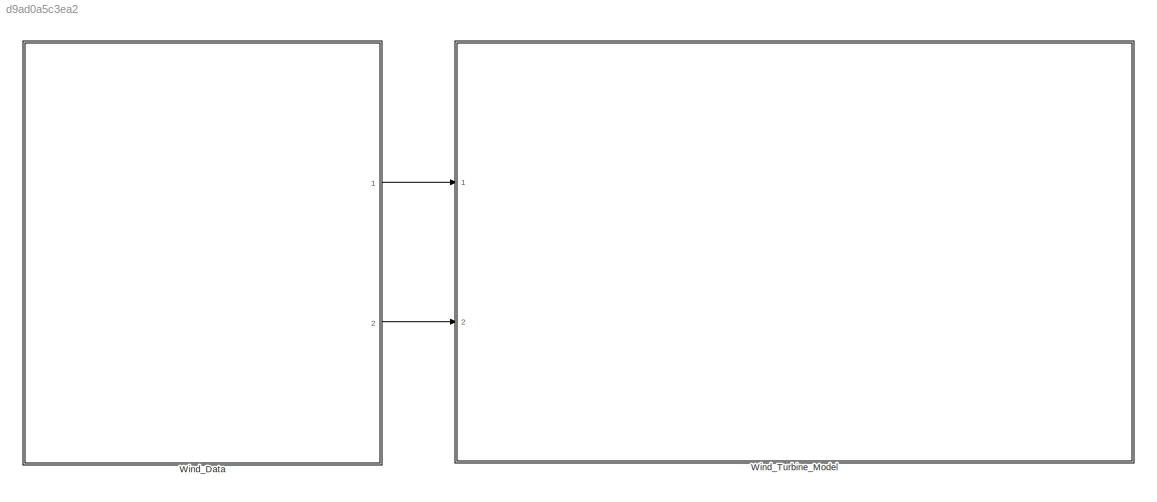
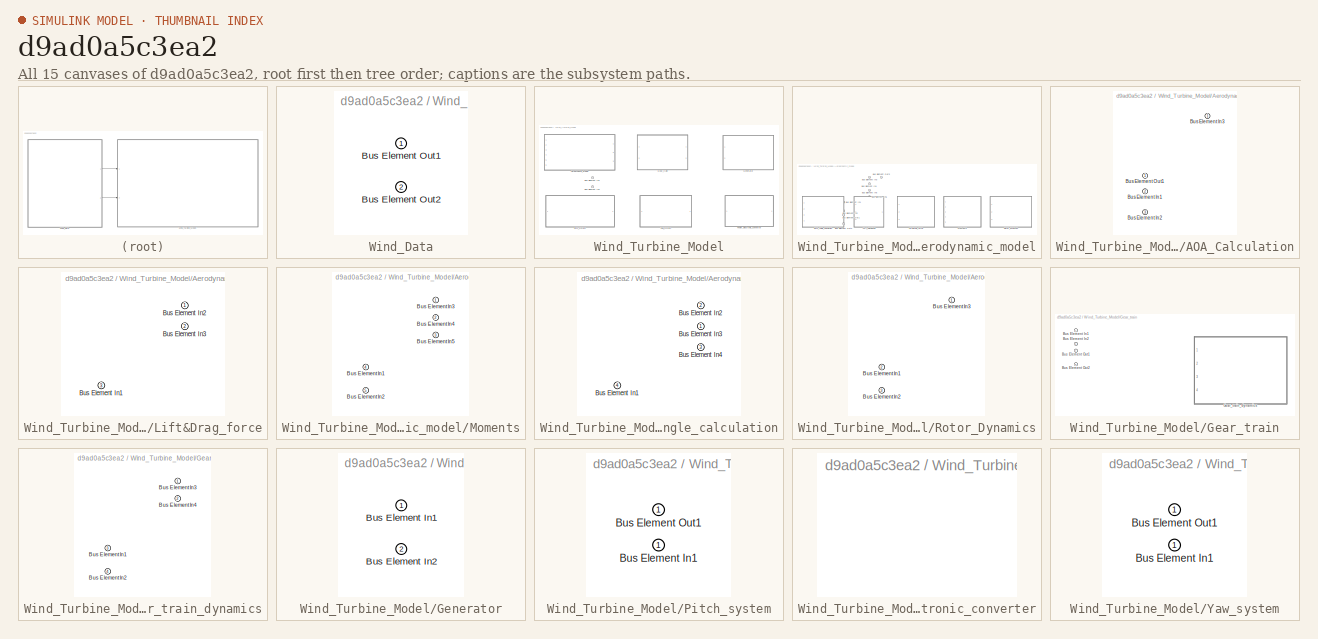
[diagram: thumbnail index - all 15 canvases of the model, root first then tree order]
MODEL slx_d9ad0a5c3ea2
KIND model
CONFIG AbsTol = auto
CONFIG EnableMultiTasking = off
CONFIG FixedStep = auto
CONFIG MaxStep = auto
CONFIG MinStep = auto
CONFIG RelTol = 1e-3
CONFIG SampleTimeConstraint = Unconstrained
CONFIG Solver = VariableStepAuto
CONFIG SolverName = VariableStepAuto
CONFIG StartTime = 0.0
CONFIG StopTime = 10.0
WORKSPACE source: mxarray member
WORKSPACE Aerodynamics_subsystem: Simulink.Bus (value not decoded)
WORKSPACE Gear_train: Simulink.Bus (value not decoded)
WORKSPACE Pitch_subsystem: Simulink.Bus (value not decoded)
WORKSPACE Yaw_subsystem: Simulink.Bus (value not decoded)
BLOCK [SubSystem] Wind_Data
  PortSchema = {"entries":[{"content":{"headerSize":26,"margin":15,"minimumSpacing":25,"sides":[{"content":{"connectorIds":[]},"type":"ConnectorPlacement.EquallySpacedRectSide","uuid":"0b654df8-291b-4ec3-b235-d9b2c2fe09d2"},{"content":{"connectorIds":["Out1","Out2"],"side":"RIGHT"},"type":"ConnectorPlacement.EquallySpacedRectSide","uuid":"a4fe281e-c492-45bd-b5d6-a645186b9bb6"},{"content":{"connectorIds":[],"side...<+292ch>
  Ports = [0, 2]
  RequestExecContextInheritance = off
BLOCK [Outport] Wind_Data/Bus Element Out1
BLOCK [Outport] Wind_Data/Bus Element Out2
  Port = 2
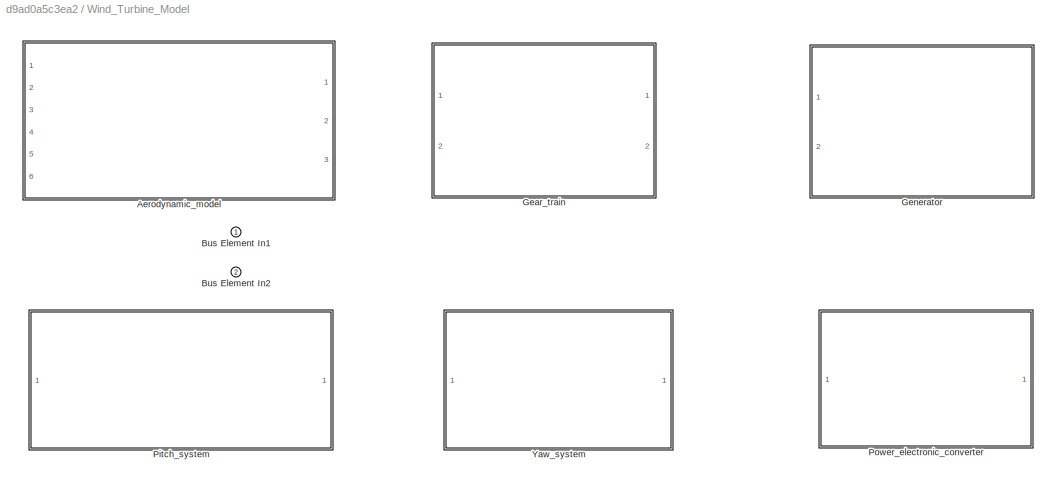
BLOCK [SubSystem] Wind_Turbine_Model
  PortSchema = {"entries":[{"content":{"headerSize":26,"margin":15,"minimumSpacing":25,"sides":[{"content":{"connectorIds":["In1","In2"]},"type":"ConnectorPlacement.EquallySpacedRectSide","uuid":"0b654df8-291b-4ec3-b235-d9b2c2fe09d2"},{"content":{"connectorIds":[],"side":"RIGHT"},"type":"ConnectorPlacement.EquallySpacedRectSide","uuid":"a4fe281e-c492-45bd-b5d6-a645186b9bb6"},{"content":{"connectorIds":[],"side":...<+290ch>
  Ports = [2]
  RequestExecContextInheritance = off
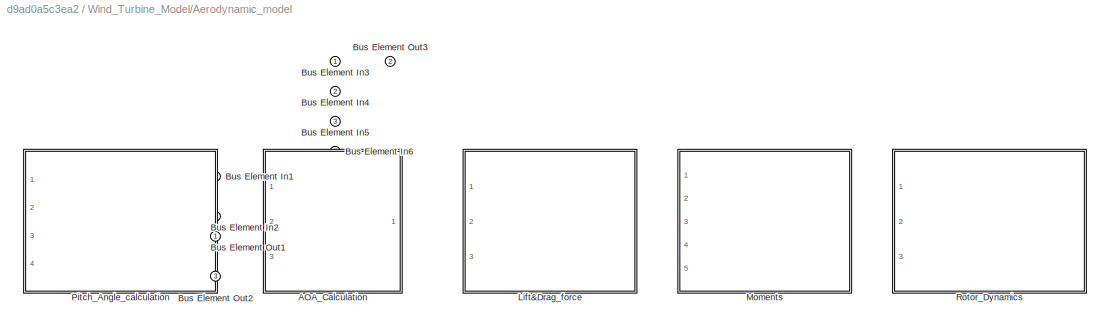
BLOCK [SubSystem] Wind_Turbine_Model/Aerodynamic_model
  PortSchema = {"entries":[{"content":{"headerSize":26,"margin":15,"minimumSpacing":25,"sides":[{"content":{"connectorIds":["In5","In6","In3","In4"]},"type":"ConnectorPlacement.EquallySpacedRectSide","uuid":"0b654df8-291b-4ec3-b235-d9b2c2fe09d2"},{"content":{"connectorIds":["Out1","Out2","Out3"],"side":"RIGHT"},"type":"ConnectorPlacement.EquallySpacedRectSide","uuid":"a4fe281e-c492-45bd-b5d6-a645186b9bb6"},{"con...<+477ch>
  Ports = [6, 3]
  RequestExecContextInheritance = off
BLOCK [SubSystem] Wind_Turbine_Model/Aerodynamic_model/AOA_Calculation
  PortSchema = {"entries":[{"content":{"headerSize":26,"margin":15,"minimumSpacing":25,"sides":[{"content":{"connectorIds":["In2","Out1","In3"]},"type":"ConnectorPlacement.EquallySpacedRectSide","uuid":"ecf00de0-4a48-4b42-860b-7442add18d3c"},{"content":{"connectorIds":["In1"],"side":"RIGHT"},"type":"ConnectorPlacement.EquallySpacedRectSide","uuid":"09469086-fd43-4e9a-86e9-3abd2ebc91c2"},{"content":{"connectorIds...<+302ch>
  Ports = [3, 1]
  RequestExecContextInheritance = off
BLOCK [Inport] Wind_Turbine_Model/Aerodynamic_model/AOA_Calculation/Bus Element In1
  Port = 2
BLOCK [Inport] Wind_Turbine_Model/Aerodynamic_model/AOA_Calculation/Bus Element In2
  Port = 3
BLOCK [Inport] Wind_Turbine_Model/Aerodynamic_model/AOA_Calculation/Bus Element In3
BLOCK [Outport] Wind_Turbine_Model/Aerodynamic_model/AOA_Calculation/Bus Element Out1
BLOCK [Inport] Wind_Turbine_Model/Aerodynamic_model/Bus Element In1
  Port = 5
BLOCK [Inport] Wind_Turbine_Model/Aerodynamic_model/Bus Element In2
  Port = 6
BLOCK [Inport] Wind_Turbine_Model/Aerodynamic_model/Bus Element In3
BLOCK [Inport] Wind_Turbine_Model/Aerodynamic_model/Bus Element In4
  Port = 2
BLOCK [Inport] Wind_Turbine_Model/Aerodynamic_model/Bus Element In5
  Port = 3
BLOCK [Inport] Wind_Turbine_Model/Aerodynamic_model/Bus Element In6
  Port = 4
BLOCK [Outport] Wind_Turbine_Model/Aerodynamic_model/Bus Element Out1
BLOCK [Outport] Wind_Turbine_Model/Aerodynamic_model/Bus Element Out2
  Port = 3
BLOCK [Outport] Wind_Turbine_Model/Aerodynamic_model/Bus Element Out3
  Port = 2
BLOCK [SubSystem] Wind_Turbine_Model/Aerodynamic_model/Lift&Drag_force
  PortSchema = {"entries":[{"content":{"headerSize":26,"margin":15,"minimumSpacing":25,"sides":[{"content":{"connectorIds":["In3"]},"type":"ConnectorPlacement.EquallySpacedRectSide","uuid":"ecf00de0-4a48-4b42-860b-7442add18d3c"},{"content":{"connectorIds":["In1","In2"],"side":"RIGHT"},"type":"ConnectorPlacement.EquallySpacedRectSide","uuid":"09469086-fd43-4e9a-86e9-3abd2ebc91c2"},{"content":{"connectorIds":[],"s...<+295ch>
  Ports = [3]
  RequestExecContextInheritance = off
BLOCK [Inport] Wind_Turbine_Model/Aerodynamic_model/Lift&Drag_force/Bus Element In1
  Port = 3
BLOCK [Inport] Wind_Turbine_Model/Aerodynamic_model/Lift&Drag_force/Bus Element In2
BLOCK [Inport] Wind_Turbine_Model/Aerodynamic_model/Lift&Drag_force/Bus Element In3
  Port = 2
BLOCK [SubSystem] Wind_Turbine_Model/Aerodynamic_model/Moments
  PortSchema = {"entries":[{"content":{"headerSize":26,"margin":15,"minimumSpacing":25,"sides":[{"content":{"connectorIds":["In4","In5","In3"]},"type":"ConnectorPlacement.EquallySpacedRectSide","uuid":"ecf00de0-4a48-4b42-860b-7442add18d3c"},{"content":{"connectorIds":["In1","In2"],"side":"RIGHT"},"type":"ConnectorPlacement.EquallySpacedRectSide","uuid":"09469086-fd43-4e9a-86e9-3abd2ebc91c2"},{"content":{"connect...<+307ch>
  Ports = [5]
  RequestExecContextInheritance = off
BLOCK [Inport] Wind_Turbine_Model/Aerodynamic_model/Moments/Bus Element In1
  Port = 4
BLOCK [Inport] Wind_Turbine_Model/Aerodynamic_model/Moments/Bus Element In2
  Port = 5
BLOCK [Inport] Wind_Turbine_Model/Aerodynamic_model/Moments/Bus Element In3
BLOCK [Inport] Wind_Turbine_Model/Aerodynamic_model/Moments/Bus Element In4
  Port = 2
BLOCK [Inport] Wind_Turbine_Model/Aerodynamic_model/Moments/Bus Element In5
  Port = 3
BLOCK [SubSystem] Wind_Turbine_Model/Aerodynamic_model/Pitch_Angle_calculation
  PortSchema = {"entries":[{"content":{"headerSize":26,"margin":15,"minimumSpacing":25,"sides":[{"content":{"connectorIds":["In2","In4","In3"]},"type":"ConnectorPlacement.EquallySpacedRectSide","uuid":"ecf00de0-4a48-4b42-860b-7442add18d3c"},{"content":{"connectorIds":["In1"],"side":"RIGHT"},"type":"ConnectorPlacement.EquallySpacedRectSide","uuid":"09469086-fd43-4e9a-86e9-3abd2ebc91c2"},{"content":{"connectorIds"...<+301ch>
  Ports = [4]
  RequestExecContextInheritance = off
BLOCK [Inport] Wind_Turbine_Model/Aerodynamic_model/Pitch_Angle_calculation/Bus Element In1
  Port = 4
BLOCK [Inport] Wind_Turbine_Model/Aerodynamic_model/Pitch_Angle_calculation/Bus Element In2
  Port = 2
BLOCK [Inport] Wind_Turbine_Model/Aerodynamic_model/Pitch_Angle_calculation/Bus Element In3
BLOCK [Inport] Wind_Turbine_Model/Aerodynamic_model/Pitch_Angle_calculation/Bus Element In4
  Port = 3
BLOCK [SubSystem] Wind_Turbine_Model/Aerodynamic_model/Rotor_Dynamics
  PortSchema = {"entries":[{"content":{"headerSize":26,"margin":15,"minimumSpacing":25,"sides":[{"content":{"connectorIds":["In2","In3"]},"type":"ConnectorPlacement.EquallySpacedRectSide","uuid":"ecf00de0-4a48-4b42-860b-7442add18d3c"},{"content":{"connectorIds":["In1"],"side":"RIGHT"},"type":"ConnectorPlacement.EquallySpacedRectSide","uuid":"09469086-fd43-4e9a-86e9-3abd2ebc91c2"},{"content":{"connectorIds":[],"s...<+295ch>
  Ports = [3]
  RequestExecContextInheritance = off
BLOCK [Inport] Wind_Turbine_Model/Aerodynamic_model/Rotor_Dynamics/Bus Element In1
  Port = 2
BLOCK [Inport] Wind_Turbine_Model/Aerodynamic_model/Rotor_Dynamics/Bus Element In2
  Port = 3
BLOCK [Inport] Wind_Turbine_Model/Aerodynamic_model/Rotor_Dynamics/Bus Element In3
BLOCK [Inport] Wind_Turbine_Model/Bus Element In1
BLOCK [Inport] Wind_Turbine_Model/Bus Element In2
  Port = 2
BLOCK [SubSystem] Wind_Turbine_Model/Gear_train
  PortSchema = {"entries":[{"content":{"headerSize":26,"margin":15,"minimumSpacing":25,"sides":[{"content":{"connectorIds":["In1","In2"]},"type":"ConnectorPlacement.EquallySpacedRectSide","uuid":"0b654df8-291b-4ec3-b235-d9b2c2fe09d2"},{"content":{"connectorIds":["Out1","Out2"],"side":"RIGHT"},"type":"ConnectorPlacement.EquallySpacedRectSide","uuid":"a4fe281e-c492-45bd-b5d6-a645186b9bb6"},{"content":{"connectorId...<+303ch>
  Ports = [2, 2]
  RequestExecContextInheritance = off
BLOCK [Inport] Wind_Turbine_Model/Gear_train/Bus Element In1
BLOCK [Inport] Wind_Turbine_Model/Gear_train/Bus Element In2
  Port = 2
BLOCK [Outport] Wind_Turbine_Model/Gear_train/Bus Element Out1
BLOCK [Outport] Wind_Turbine_Model/Gear_train/Bus Element Out2
  Port = 2
BLOCK [SubSystem] Wind_Turbine_Model/Gear_train/Gear_train_dynamics
  PortSchema = {"entries":[{"content":{"headerSize":26,"margin":15,"minimumSpacing":25,"sides":[{"content":{"connectorIds":["In3","In4"]},"type":"ConnectorPlacement.EquallySpacedRectSide","uuid":"ecf00de0-4a48-4b42-860b-7442add18d3c"},{"content":{"connectorIds":["In1","In2"],"side":"RIGHT"},"type":"ConnectorPlacement.EquallySpacedRectSide","uuid":"09469086-fd43-4e9a-86e9-3abd2ebc91c2"},{"content":{"connectorIds"...<+301ch>
  Ports = [4]
  RequestExecContextInheritance = off
BLOCK [Inport] Wind_Turbine_Model/Gear_train/Gear_train_dynamics/Bus Element In1
  Port = 3
BLOCK [Inport] Wind_Turbine_Model/Gear_train/Gear_train_dynamics/Bus Element In2
  Port = 4
BLOCK [Inport] Wind_Turbine_Model/Gear_train/Gear_train_dynamics/Bus Element In3
BLOCK [Inport] Wind_Turbine_Model/Gear_train/Gear_train_dynamics/Bus Element In4
  Port = 2
BLOCK [SubSystem] Wind_Turbine_Model/Generator
  PortSchema = {"entries":[{"content":{"headerSize":26,"margin":15,"minimumSpacing":25,"sides":[{"content":{"connectorIds":["In1","In2"]},"type":"ConnectorPlacement.EquallySpacedRectSide","uuid":"0b654df8-291b-4ec3-b235-d9b2c2fe09d2"},{"content":{"connectorIds":[],"side":"RIGHT"},"type":"ConnectorPlacement.EquallySpacedRectSide","uuid":"a4fe281e-c492-45bd-b5d6-a645186b9bb6"},{"content":{"connectorIds":[],"side":...<+290ch>
  Ports = [2]
  RequestExecContextInheritance = off
BLOCK [Inport] Wind_Turbine_Model/Generator/Bus Element In1
BLOCK [Inport] Wind_Turbine_Model/Generator/Bus Element In2
  Port = 2
BLOCK [SubSystem] Wind_Turbine_Model/Pitch_system
  PortSchema = {"entries":[{"content":{"headerSize":26,"margin":15,"minimumSpacing":25,"sides":[{"content":{"connectorIds":["In1"]},"type":"ConnectorPlacement.EquallySpacedRectSide","uuid":"0b654df8-291b-4ec3-b235-d9b2c2fe09d2"},{"content":{"connectorIds":["Out1"],"side":"RIGHT"},"type":"ConnectorPlacement.EquallySpacedRectSide","uuid":"a4fe281e-c492-45bd-b5d6-a645186b9bb6"},{"content":{"connectorIds":[],"side":...<+290ch>
  Ports = [1, 1]
  RequestExecContextInheritance = off
BLOCK [Inport] Wind_Turbine_Model/Pitch_system/Bus Element In1
BLOCK [Outport] Wind_Turbine_Model/Pitch_system/Bus Element Out1
BLOCK [SubSystem] Wind_Turbine_Model/Power_electronic_converter
  PortSchema = {"entries":[{"content":{"headerSize":26,"margin":15,"minimumSpacing":25,"sides":[{"content":{"connectorIds":[]},"type":"ConnectorPlacement.EquallySpacedRectSide","uuid":"0b654df8-291b-4ec3-b235-d9b2c2fe09d2"},{"content":{"connectorIds":[],"side":"RIGHT"},"type":"ConnectorPlacement.EquallySpacedRectSide","uuid":"a4fe281e-c492-45bd-b5d6-a645186b9bb6"},{"content":{"connectorIds":[],"side":"TOP"},"typ...<+279ch>
  Ports = []
  RequestExecContextInheritance = off
BLOCK [SubSystem] Wind_Turbine_Model/Yaw_system
  PortSchema = {"entries":[{"content":{"headerSize":26,"margin":15,"minimumSpacing":25,"sides":[{"content":{"connectorIds":["In1"]},"type":"ConnectorPlacement.EquallySpacedRectSide","uuid":"0b654df8-291b-4ec3-b235-d9b2c2fe09d2"},{"content":{"connectorIds":["Out1"],"side":"RIGHT"},"type":"ConnectorPlacement.EquallySpacedRectSide","uuid":"a4fe281e-c492-45bd-b5d6-a645186b9bb6"},{"content":{"connectorIds":[],"side":...<+290ch>
  Ports = [1, 1]
  RequestExecContextInheritance = off
BLOCK [Inport] Wind_Turbine_Model/Yaw_system/Bus Element In1
BLOCK [Outport] Wind_Turbine_Model/Yaw_system/Bus Element Out1
LINE Wind_Data:1 -> Wind_Turbine_Model:1
LINE Wind_Data:2 -> Wind_Turbine_Model:2
